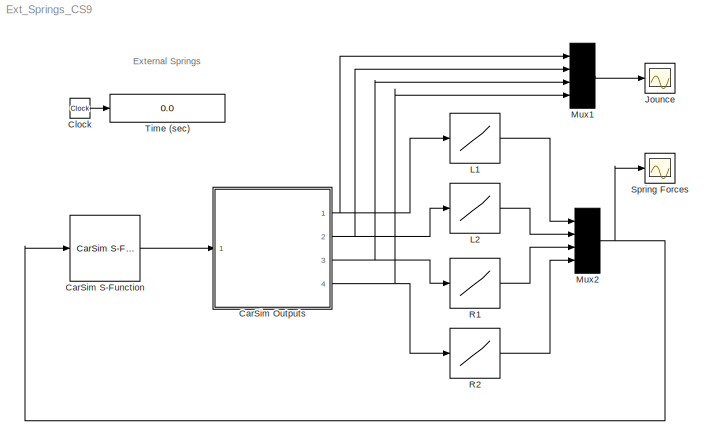
MODEL Ext_Springs_CS9
KIND model
CONFIG PreLoadFcn = cd Extensions/Simulink/Springs\nspring_e_class\ncd ../../..
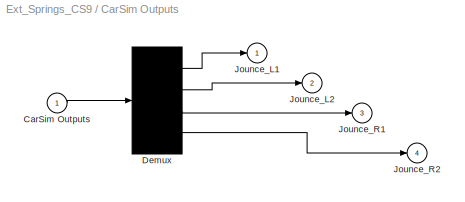
BLOCK [SubSystem] CarSim Outputs
  FunctionWithSeparateData = off
  MaskHideContents = off
  MinAlgLoopOccurrences = off
  Opaque = off
  Ports = [1, 4]
  PropExecContextOutsideSubsystem = off
  RTWSystemCode = Auto
  RequestExecContextInheritance = off
  SID = 1
BLOCK [Inport] CarSim Outputs/CarSim Outputs
  IconDisplay = Port number
  SID = 2
BLOCK [Demux] CarSim Outputs/Demux
  Ports = [1, 4]
  SID = 3
BLOCK [Outport] CarSim Outputs/Jounce_L1
  IconDisplay = Port number
  InitialOutput = 0
  SID = 4
BLOCK [Outport] CarSim Outputs/Jounce_L2
  IconDisplay = Port number
  InitialOutput = 0
  Port = 2
  SID = 5
BLOCK [Outport] CarSim Outputs/Jounce_R1
  IconDisplay = Port number
  InitialOutput = 0
  Port = 3
  SID = 6
BLOCK [Outport] CarSim Outputs/Jounce_R2
  IconDisplay = Port number
  InitialOutput = 0
  Port = 4
  SID = 7
BLOCK [Reference] CarSim S-Function  REF=Solver_SF/CarSim S-Function
  Ports = [1, 1]
  Priority = 1
  SID = 8
  SIMFILE = simfile.sim
  SourceBlock = Solver_SF/CarSim S-Function
  SourceType = Vehicle math model library
BLOCK [Clock] Clock
  Decimation = 10
  SID = 9
BLOCK [Scope] Jounce
  DataFormat = Array
  Floating = off
  LimitDataPoints = off
  NumInputPorts = 1
  Ports = [1]
  SID = 10
  TickLabels = on
  TimeRange = 7
  YMax = 40
  YMin = -60
BLOCK [Lookup] L1
  InputValues = FS_COMP_TABLE_F(:,1)
  SID = 11
  Table = FS_COMP_TABLE_F(:,2)
BLOCK [Lookup] L2
  InputValues = FS_COMP_TABLE_R(:,1)
  SID = 12
  Table = FS_COMP_TABLE_R(:,2)
BLOCK [Mux] Mux1
  Ports = [4, 1]
  SID = 14
BLOCK [Mux] Mux2
  Ports = [4, 1]
  SID = 15
BLOCK [Lookup] R1
  InputValues = FS_COMP_TABLE_F(:,1)
  SID = 16
  Table = FS_COMP_TABLE_F(:,2)
BLOCK [Lookup] R2
  InputValues = FS_COMP_TABLE_R(:,1)
  SID = 17
  Table = FS_COMP_TABLE_R(:,2)
BLOCK [Scope] Spring Forces
  DataFormat = Array
  Floating = off
  LimitDataPoints = off
  NumInputPorts = 1
  Ports = [1]
  SID = 18
  SaveName = ScopeData1
  TickLabels = on
  TimeRange = 7
  YMax = 7000
  YMin = 2000
BLOCK [Display] Time (sec)
  Decimation = 100
  Format = bank
  Lockdown = off
  Ports = [1]
  SID = 19
ANNOTATION (root): External Springs
LINE CarSim Outputs/CarSim Outputs:1 -> CarSim Outputs/Demux:1
LINE CarSim Outputs/Demux:1 -> CarSim Outputs/Jounce_L1:1
LINE CarSim Outputs/Demux:2 -> CarSim Outputs/Jounce_L2:1
LINE CarSim Outputs/Demux:3 -> CarSim Outputs/Jounce_R1:1
LINE CarSim Outputs/Demux:4 -> CarSim Outputs/Jounce_R2:1
NET CarSim Outputs:1 -> L1:1, Mux1:1
NET CarSim Outputs:2 -> L2:1, Mux1:2
NET CarSim Outputs:3 -> Mux1:3, R1:1
NET CarSim Outputs:4 -> Mux1:4, R2:1
LINE CarSim S-Function:1 -> CarSim Outputs:1
LINE Clock:1 -> Time (sec):1
LINE L1:1 -> Mux2:1
LINE L2:1 -> Mux2:2
LINE Mux1:1 -> Jounce:1
NET Mux2:1 -> CarSim S-Function:1, Spring Forces:1
LINE R1:1 -> Mux2:3
LINE R2:1 -> Mux2:4
note: NET lines group one-source signal fan-out (src -> all destinations, sorted); 1:1 wires keep LINE
